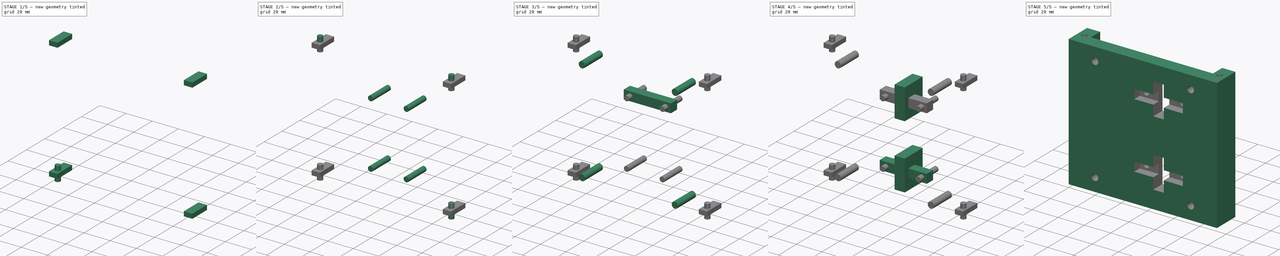
[diagram: build sequence overview — one tinted view per stage of 5, left to right]
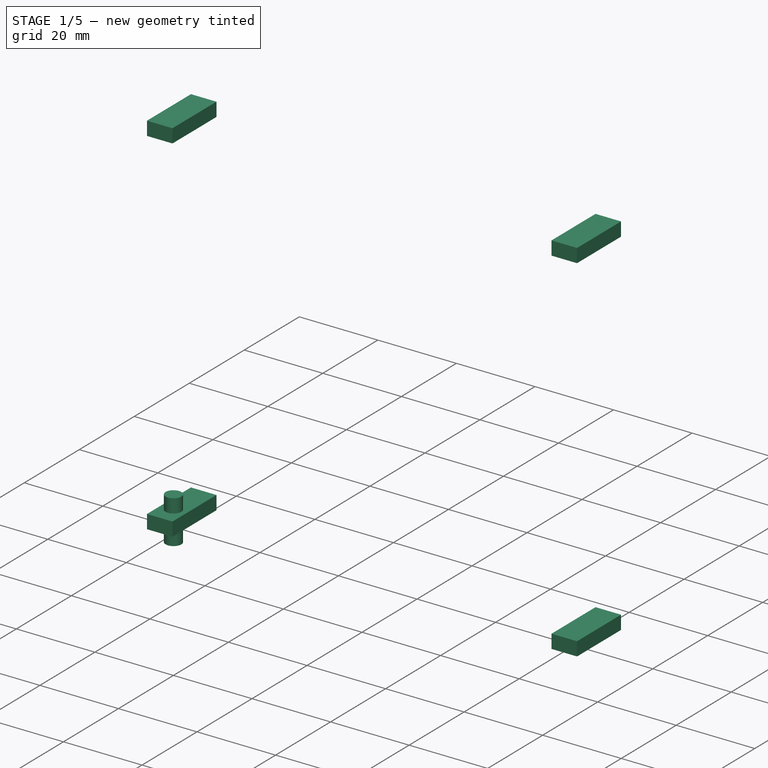
[diagram: stage 1 of 5 — iso view after this stage's code; geometry added in this stage tinted green]
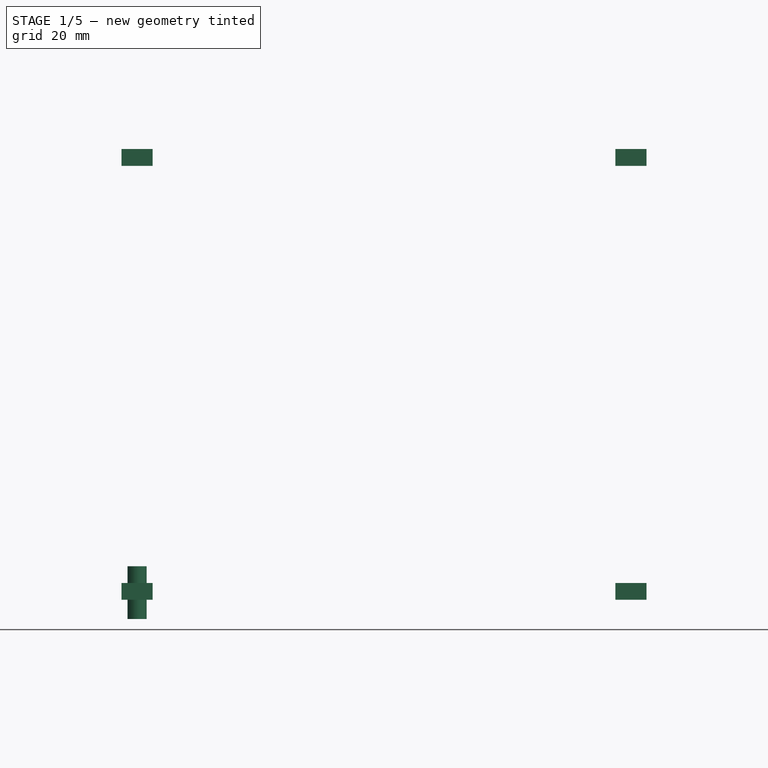
[diagram: stage 1 of 5 — front view after this stage's code; geometry added in this stage tinted green]
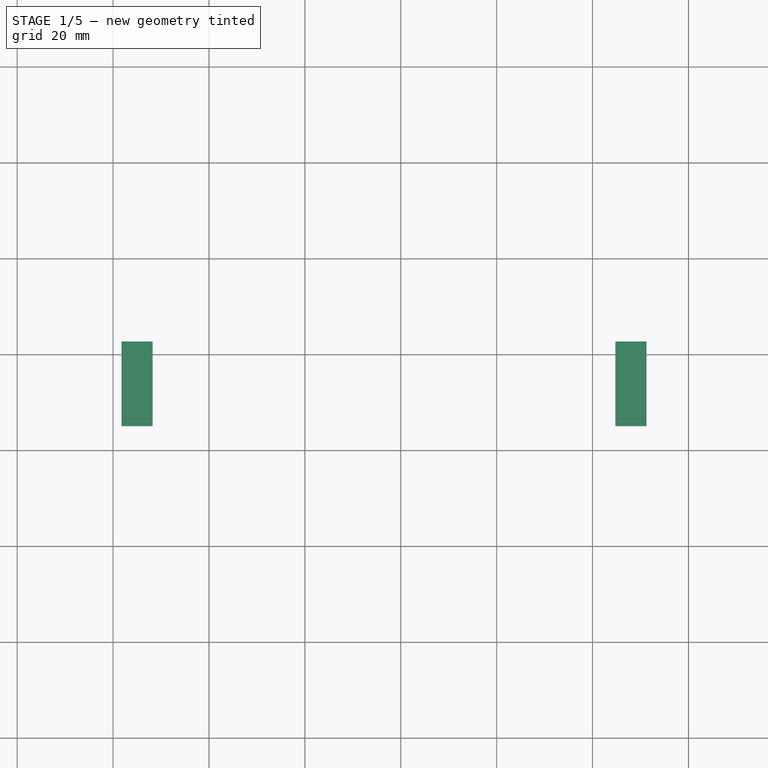
[diagram: stage 1 of 5 — top view after this stage's code; geometry added in this stage tinted green]
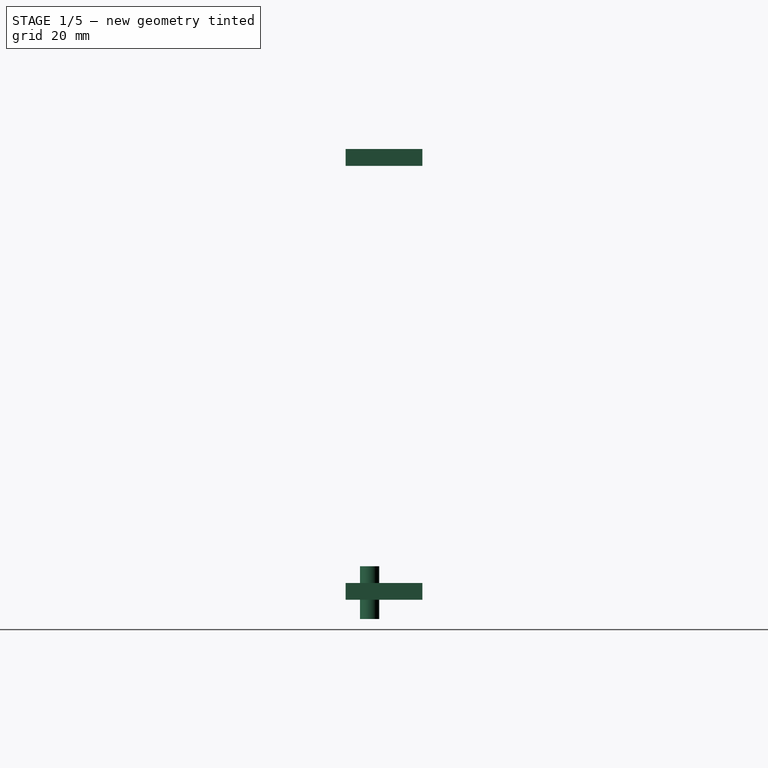
[diagram: stage 1 of 5 — right view after this stage's code; geometry added in this stage tinted green]
FCSTD DOCUMENT  (FreeCAD 0.14R3702 (Git))
Label: y_motor_holder_dn
License: CC-BY 3.0
LicenseURL: http://creativecommons.org/licenses/by/3.0/
objects: Part::Box×5, Part::FeaturePython×4, Part::Cylinder×3, Sketcher::SketchObject×1, Part::Extrusion×1, Part::MultiFuse×1, Part::Cut×1
note: 16 computed .brp shape members not serialized (recipe doc carries the construction recipe); baked Part::Feature solids carry a one-line shape summary decoded from their .brp

FEATURE [Part::Cylinder] Cylinder002  label="Cylinder"
  Angle = 360
  Height = 11
  Placement = pos=(5,10,-1) rot=(0,0,1;0rad)
  Radius = 2
FEATURE [Part::Box] Box004  label="h_nut_union"
  Height = 3.5
  Length = 6.5
  Placement = pos=(1.75,5,3) rot=(0,0,1;0rad)
  Width = 16
FEATURE [Part::FeaturePython] Array003  label="h_nut_union001"  # Draft array (typed FeaturePython)
  Angle = 360
  ArrayType = 0
  Axis = (0,0,1)
  Base = -> Box004
  Center = (0,0,0)
  IntervalX = (103,0,0)
  IntervalY = (0,1,0)
  IntervalZ = (0,0,90.5)
  NumberPolar = 1
  NumberX = 2
  NumberY = 1
  NumberZ = 2
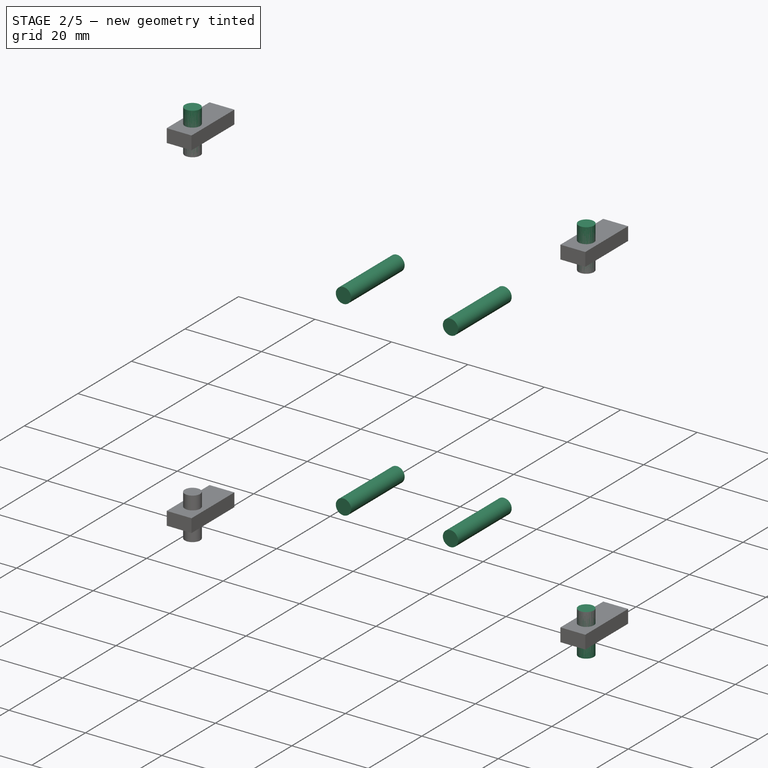
[diagram: stage 2 of 5 — iso view after this stage's code; geometry added in this stage tinted green]
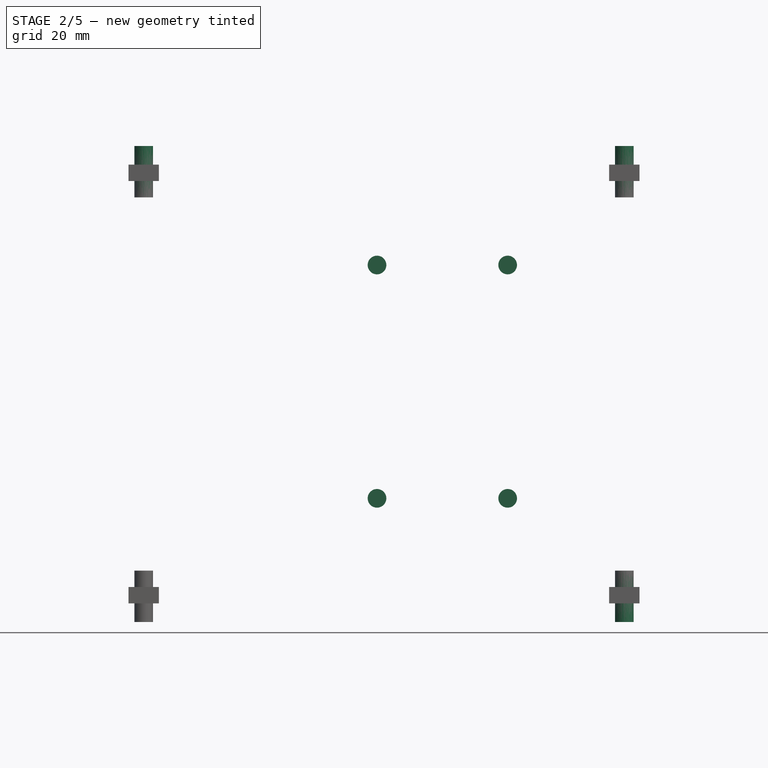
[diagram: stage 2 of 5 — front view after this stage's code; geometry added in this stage tinted green]
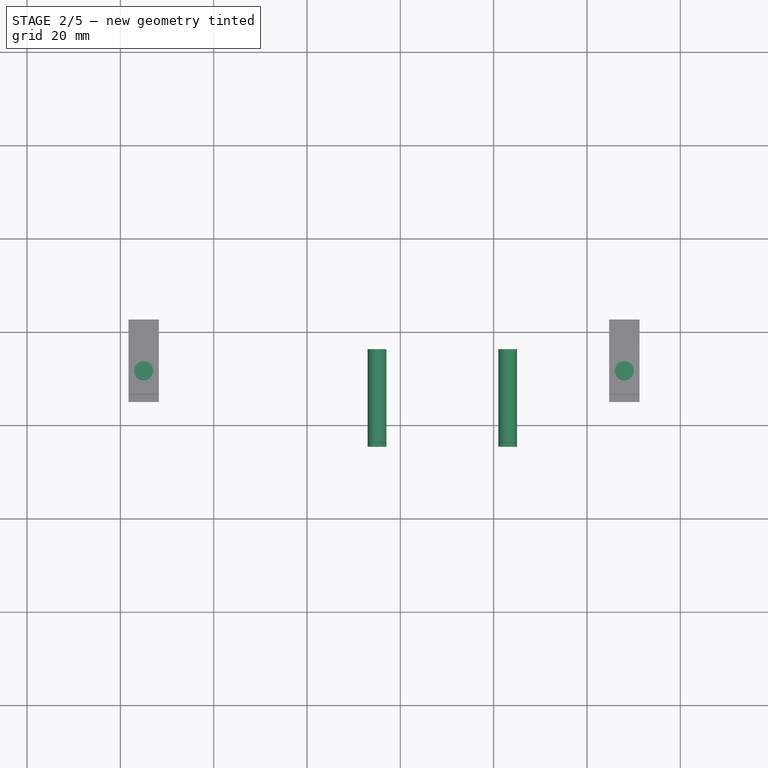
[diagram: stage 2 of 5 — top view after this stage's code; geometry added in this stage tinted green]
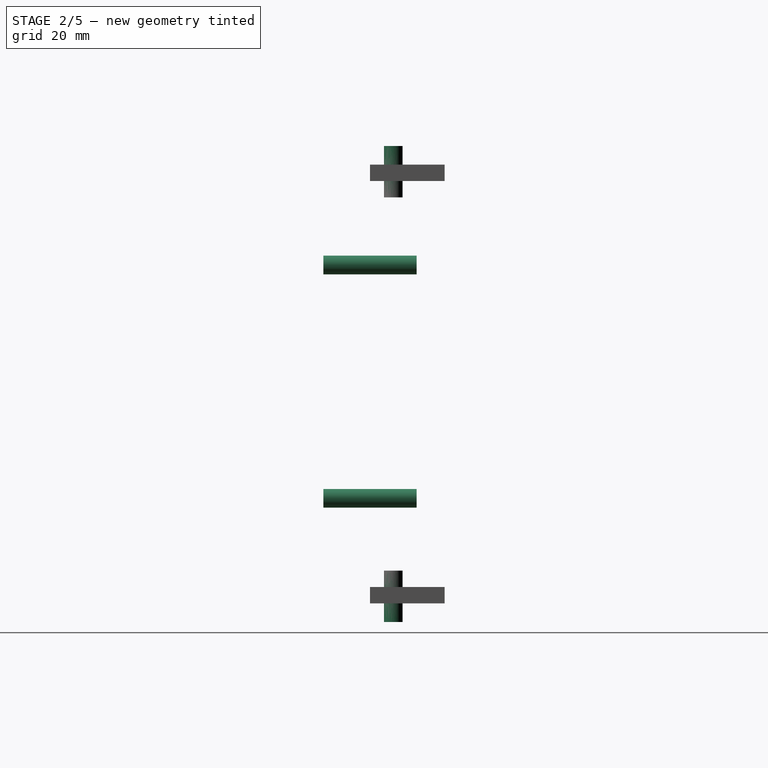
[diagram: stage 2 of 5 — right view after this stage's code; geometry added in this stage tinted green]
FEATURE [Part::Cylinder] Cylinder001  label="h_bearing_bolt_dn_l"
  Angle = 360
  Height = 20
  Placement = pos=(55,15,25.5) rot=(1,0,0;1.5708rad)
  Radius = 2
FEATURE [Part::FeaturePython] Array001  label="h_bearing_bolt"  # Draft array (typed FeaturePython)
  Angle = 360
  ArrayType = 0
  Axis = (0,0,1)
  Base = -> Cylinder001
  Center = (0,0,0)
  IntervalX = (28,0,0)
  IntervalY = (0,1,0)
  IntervalZ = (0,0,50)
  NumberPolar = 1
  NumberX = 2
  NumberY = 1
  NumberZ = 2
FEATURE [Part::FeaturePython] Array002  label="h_bolts_union"  # Draft array (typed FeaturePython)
  Angle = 360
  ArrayType = 0
  Axis = (0,0,1)
  Base = -> Cylinder002
  Center = (0,0,0)
  IntervalX = (103,0,0)
  IntervalY = (0,1,0)
  IntervalZ = (0,0,91)
  NumberPolar = 1
  NumberX = 2
  NumberY = 1
  NumberZ = 2
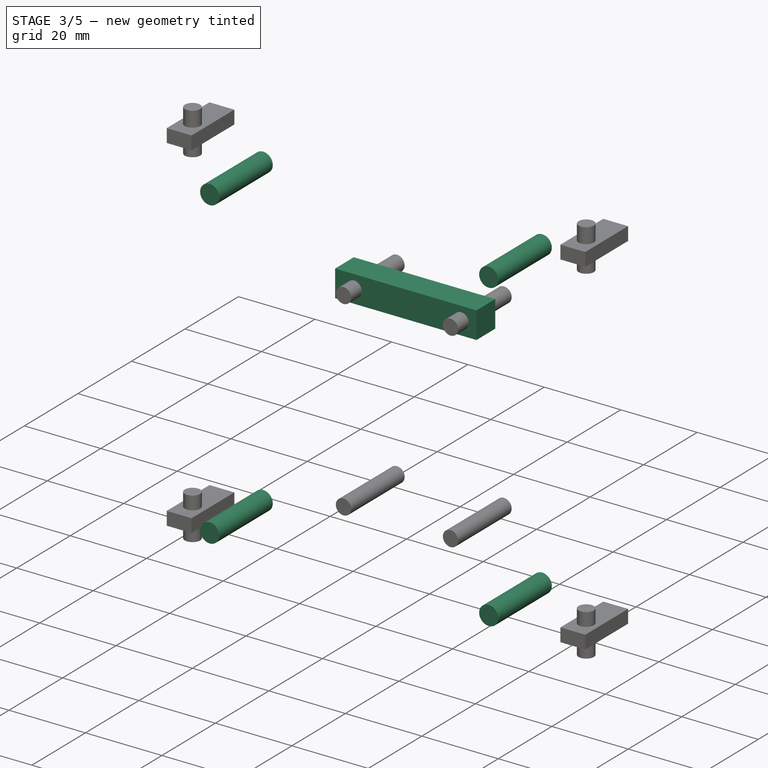
[diagram: stage 3 of 5 — iso view after this stage's code; geometry added in this stage tinted green]
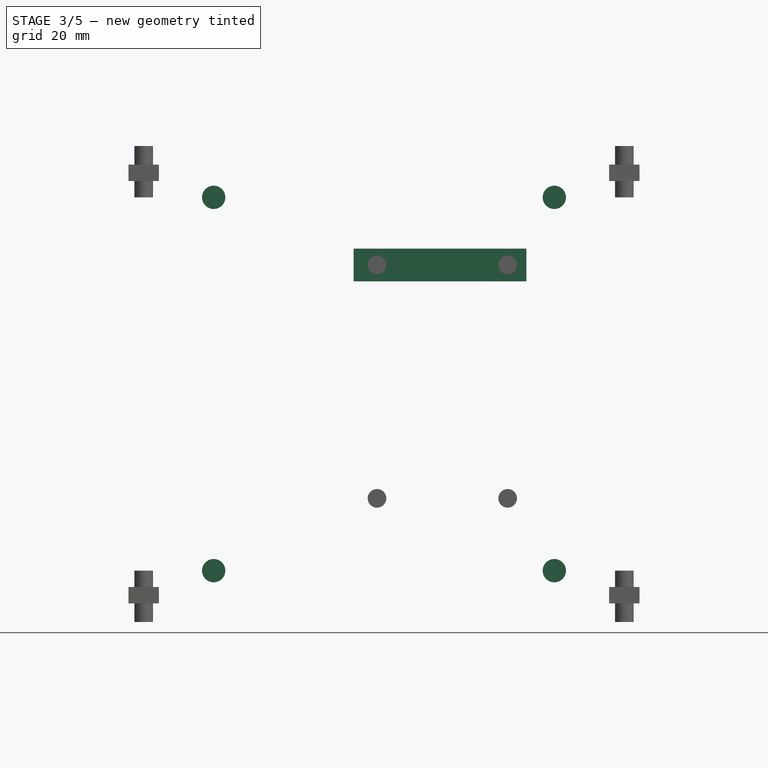
[diagram: stage 3 of 5 — front view after this stage's code; geometry added in this stage tinted green]
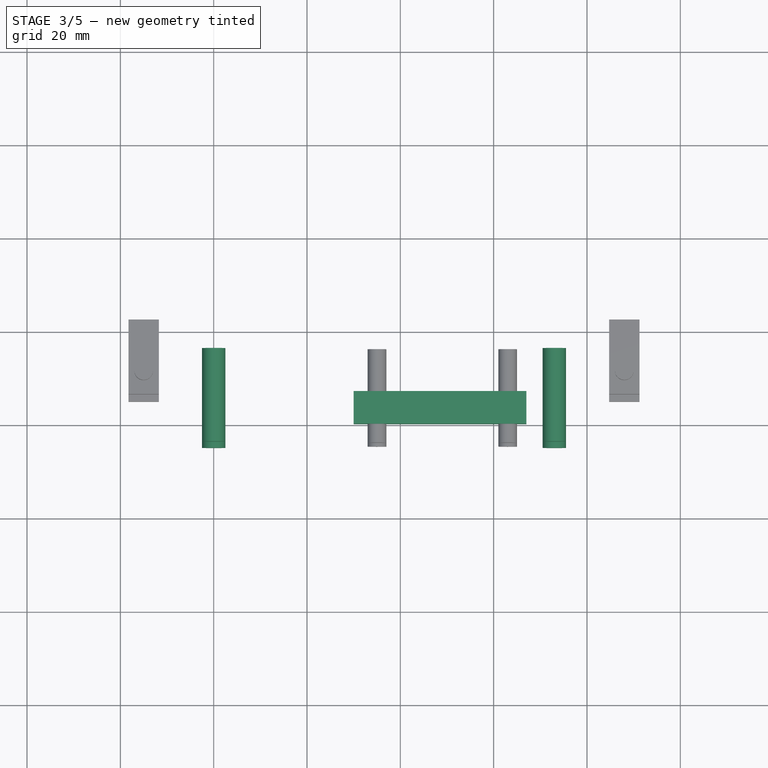
[diagram: stage 3 of 5 — top view after this stage's code; geometry added in this stage tinted green]
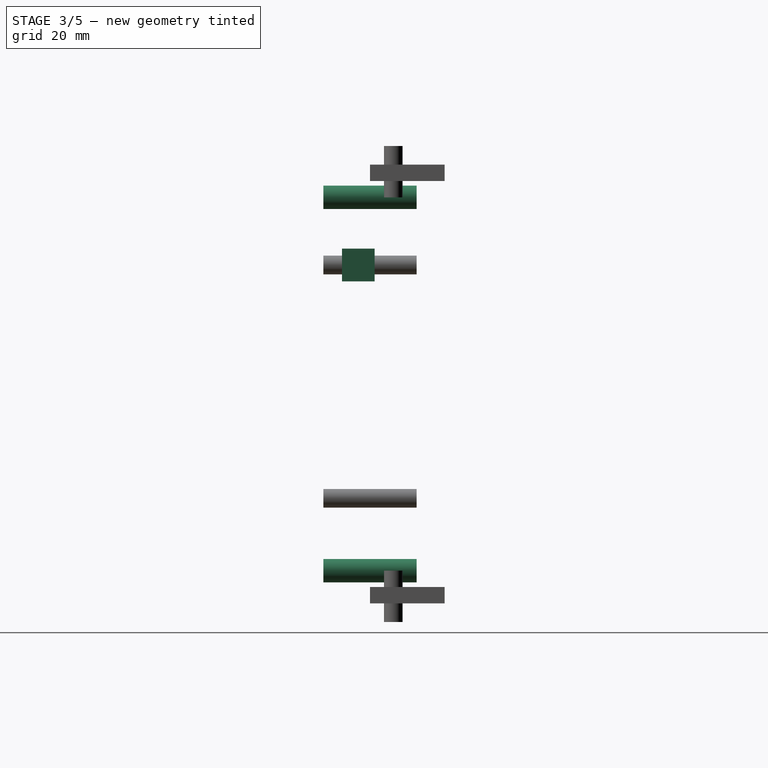
[diagram: stage 3 of 5 — right view after this stage's code; geometry added in this stage tinted green]
FEATURE [Part::Box] Box003  label="h_bearing_up_h"
  Height = 7
  Length = 37
  Placement = pos=(50,-1,72) rot=(0,0,1;0rad)
  Width = 7
FEATURE [Part::Cylinder] Cylinder  label="h_hole_extra"
  Angle = 360
  Height = 20
  Placement = pos=(20,15,10) rot=(1,0,0;1.5708rad)
  Radius = 2.5
FEATURE [Part::FeaturePython] Array  label="h_holes_extra_arr"  # Draft array (typed FeaturePython)
  Angle = 360
  ArrayType = 0
  Axis = (0,0,1)
  Base = -> Cylinder
  Center = (0,0,0)
  IntervalX = (73,0,0)
  IntervalY = (0,1,0)
  IntervalZ = (0,0,80)
  NumberPolar = 1
  NumberX = 2
  NumberY = 1
  NumberZ = 2
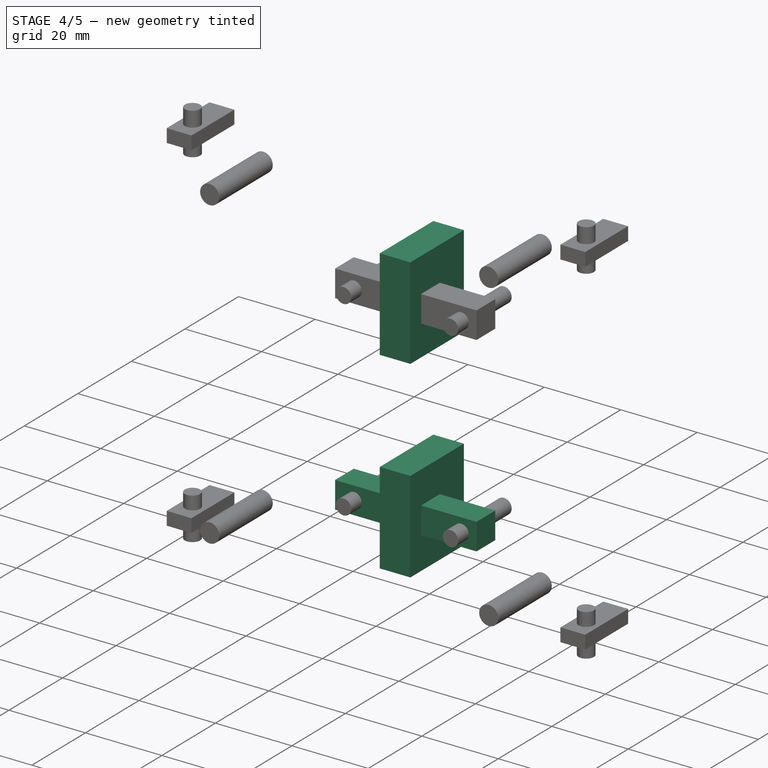
[diagram: stage 4 of 5 — iso view after this stage's code; geometry added in this stage tinted green]
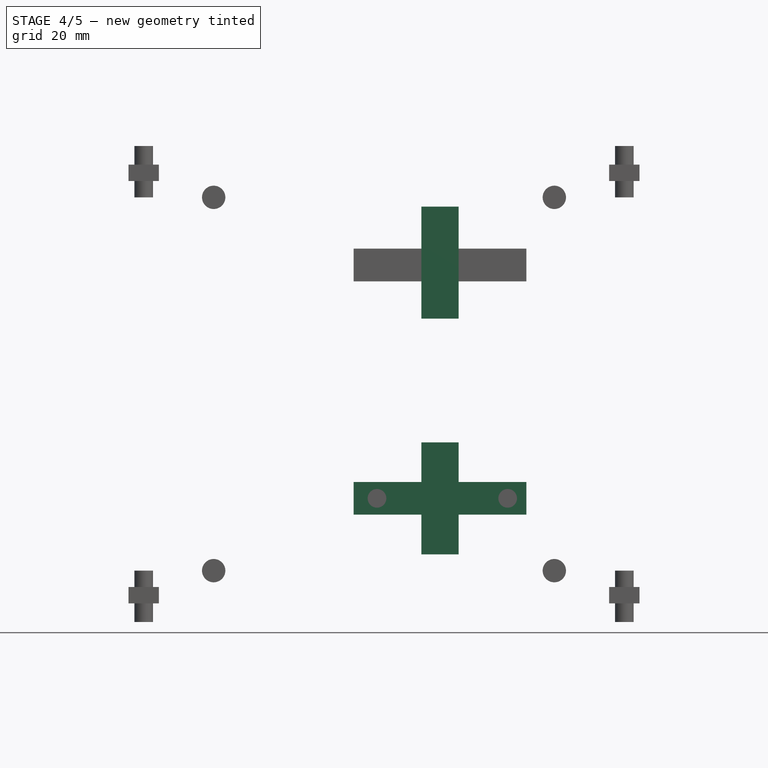
[diagram: stage 4 of 5 — front view after this stage's code; geometry added in this stage tinted green]
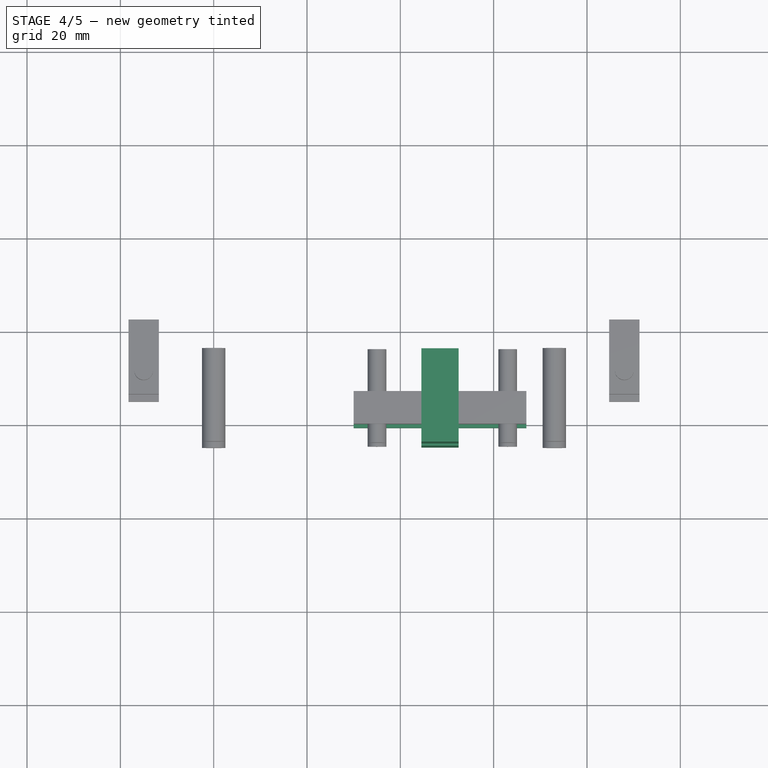
[diagram: stage 4 of 5 — top view after this stage's code; geometry added in this stage tinted green]
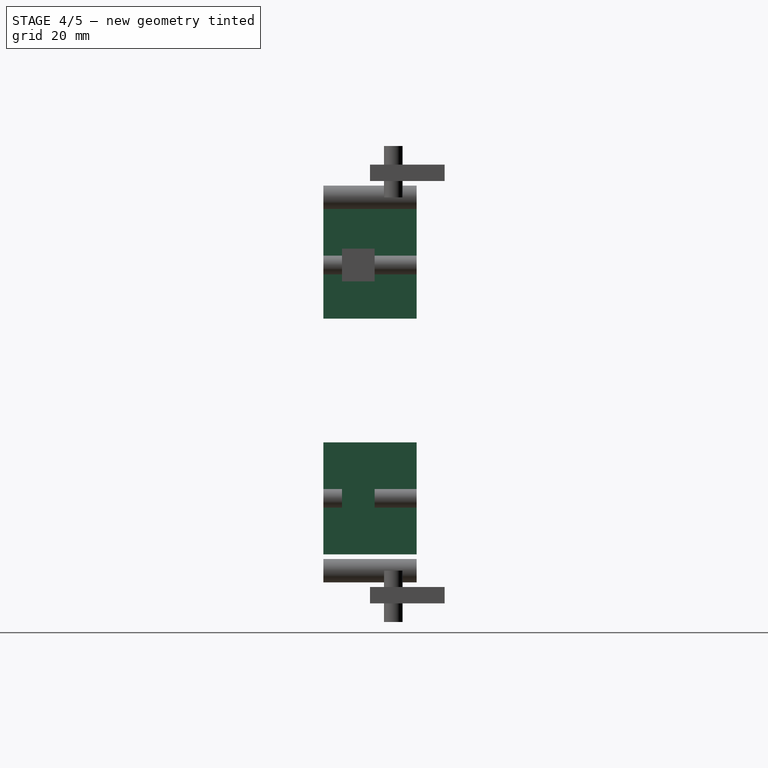
[diagram: stage 4 of 5 — right view after this stage's code; geometry added in this stage tinted green]
FEATURE [Part::Box] Box  label="h_bearing_up_v"
  Height = 24
  Length = 8
  Placement = pos=(64.5,-5,64) rot=(0,0,1;0rad)
  Width = 20
FEATURE [Part::Box] Box001  label="h_bearing_dn_v"
  Height = 24
  Length = 8
  Placement = pos=(64.5,-5,13.5) rot=(0,0,1;0rad)
  Width = 20
FEATURE [Part::Box] Box002  label="h_bearing_dn_h"
  Height = 7
  Length = 37
  Placement = pos=(50,-1,22) rot=(0,0,1;0rad)
  Width = 7
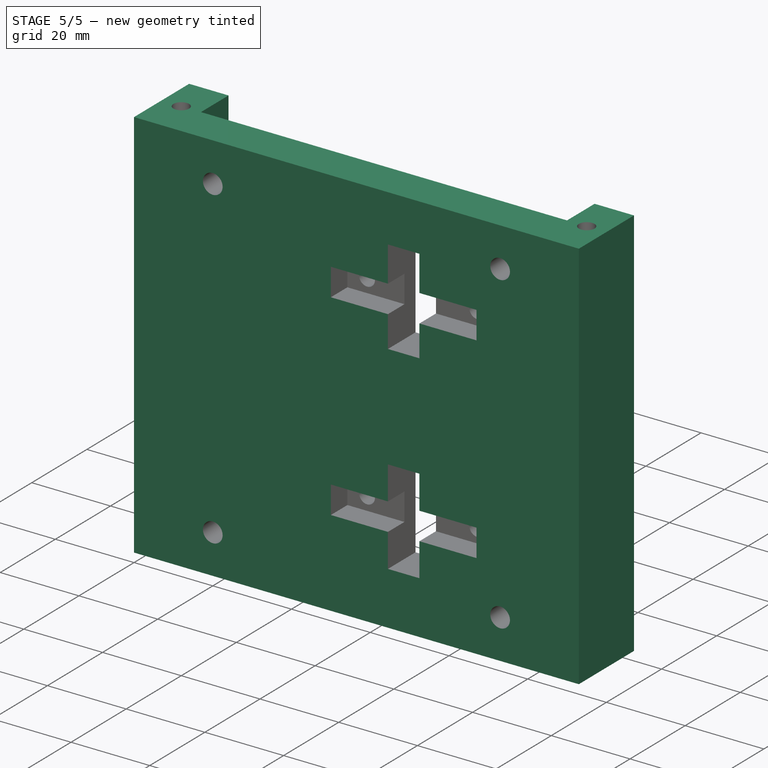
[diagram: stage 5 of 5 — iso view after this stage's code; geometry added in this stage tinted green]
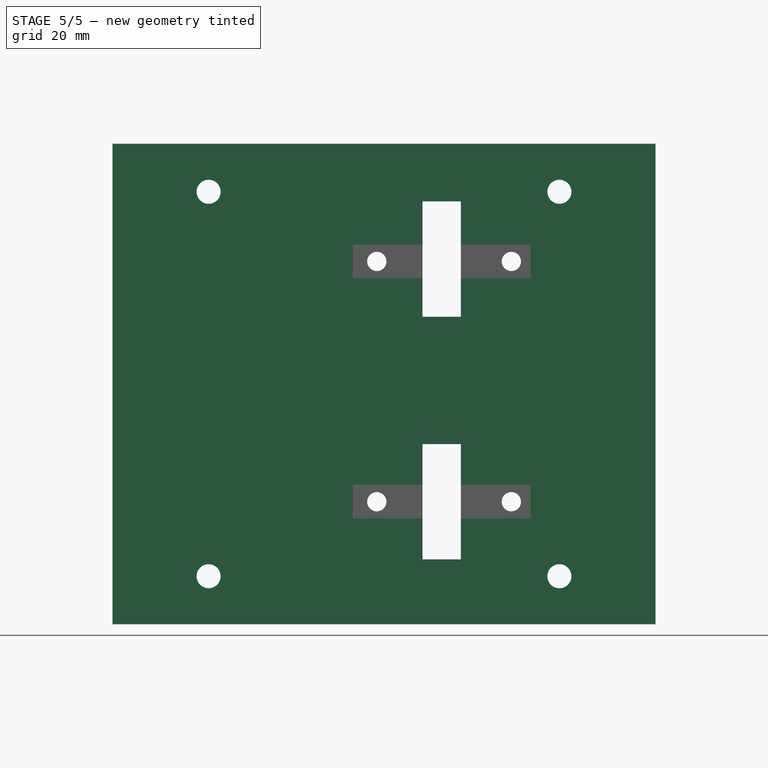
[diagram: stage 5 of 5 — front view after this stage's code; geometry added in this stage tinted green]
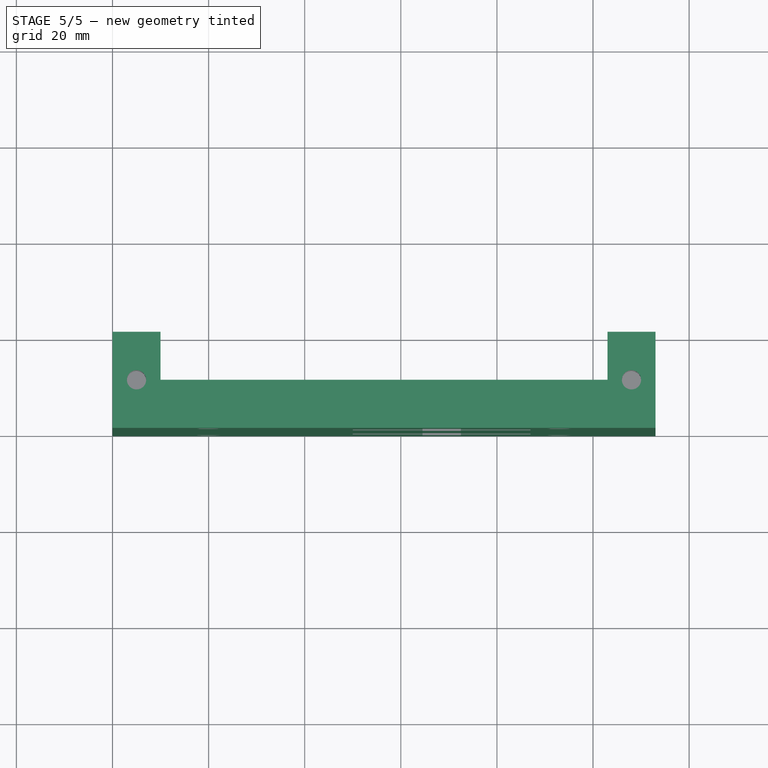
[diagram: stage 5 of 5 — top view after this stage's code; geometry added in this stage tinted green]
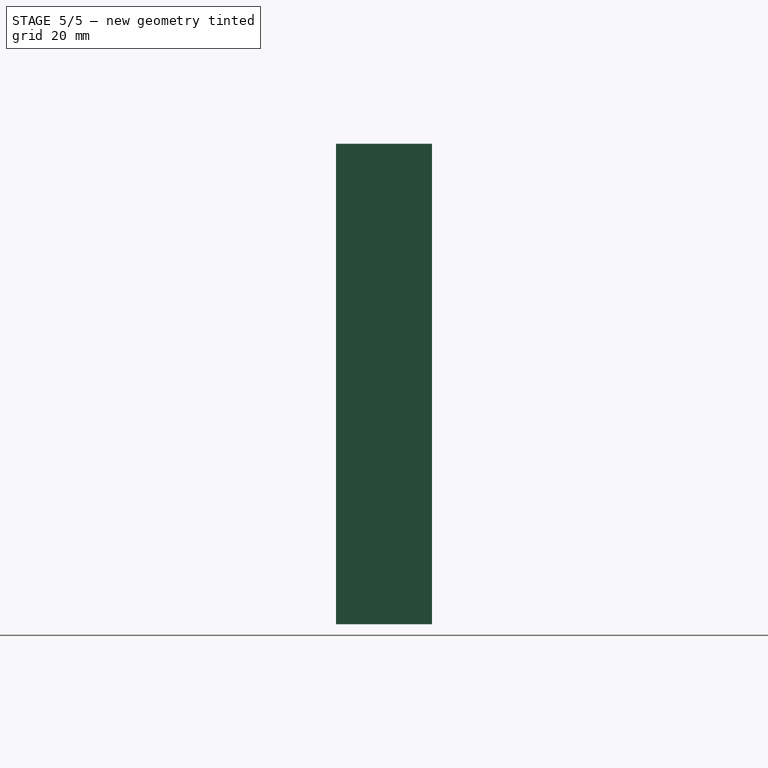
[diagram: stage 5 of 5 — right view after this stage's code; geometry added in this stage tinted green]
FEATURE [Sketcher::SketchObject] Sketch
  sketch-geometry (8):
    g0: LineSegment StartX=-56.5 StartY=20 StartZ=0 EndX=-46.5 EndY=20 EndZ=0
    g1: LineSegment StartX=-46.5 StartY=20 StartZ=0 EndX=-46.5 EndY=10 EndZ=0
    g2: LineSegment StartX=-46.5 StartY=10 StartZ=0 EndX=46.5 EndY=10 EndZ=0
    g3: LineSegment StartX=46.5 StartY=10 StartZ=0 EndX=46.5 EndY=20 EndZ=0
    g4: LineSegment StartX=46.5 StartY=20 StartZ=0 EndX=56.5 EndY=20 EndZ=0
    g5: LineSegment StartX=56.5 StartY=20 StartZ=0 EndX=56.5 EndY=0 EndZ=0
    g6: LineSegment StartX=56.5 StartY=0 StartZ=0 EndX=-56.5 EndY=0 EndZ=0
    g7: LineSegment StartX=-56.5 StartY=0 StartZ=0 EndX=-56.5 EndY=20 EndZ=0
  constraints (22):
    c: Horizontal(g0)
    c: Coincident(g0,g1)
    c: Vertical(g1)
    c: Coincident(g1,g2)
    c: Horizontal(g2)
    c: Coincident(g2,g3)
    c: Vertical(g3)
    c: Coincident(g3,g4)
    c: Coincident(g4,g5)
    c: Vertical(g5)
    c: Coincident(g5,g6)
    c: Horizontal(g6)
    c: Coincident(g6,g7)
    c: Coincident(g7,g0)
    c: Vertical(g7)
    c: Symmetric(g0,g3,g-2)
    c: Symmetric(g4,g0,g-2)
    c: DistanceX(g6) = -113
    c: DistanceX(g2) = 93
    c: DistanceY(g1) = -10
    c: DistanceY(g7) = 20
    c: PointOnObject(g6,g-1)
FEATURE [Part::Extrusion] Extrude001  label="s_base"
  Base = -> Sketch
  Dir = (0,0,100)
  Placement = pos=(56.5,0,0) rot=(0,0,1;0rad)
  Solid = true
FEATURE [Part::MultiFuse] Fusion  label="holes"
  Shapes = -> [Array003,Array002,Box,Box001,Box002,Box003,Array,Array001]
FEATURE [Part::Cut] Cut
  Base = -> Extrude001
  Tool = -> Fusion
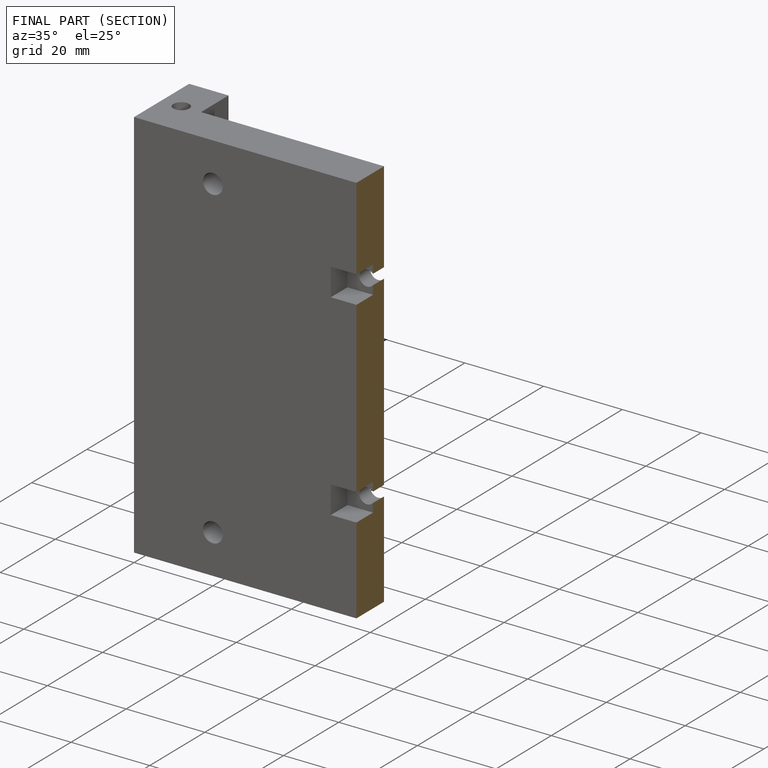
[diagram: finished part — half-section view (interior)]
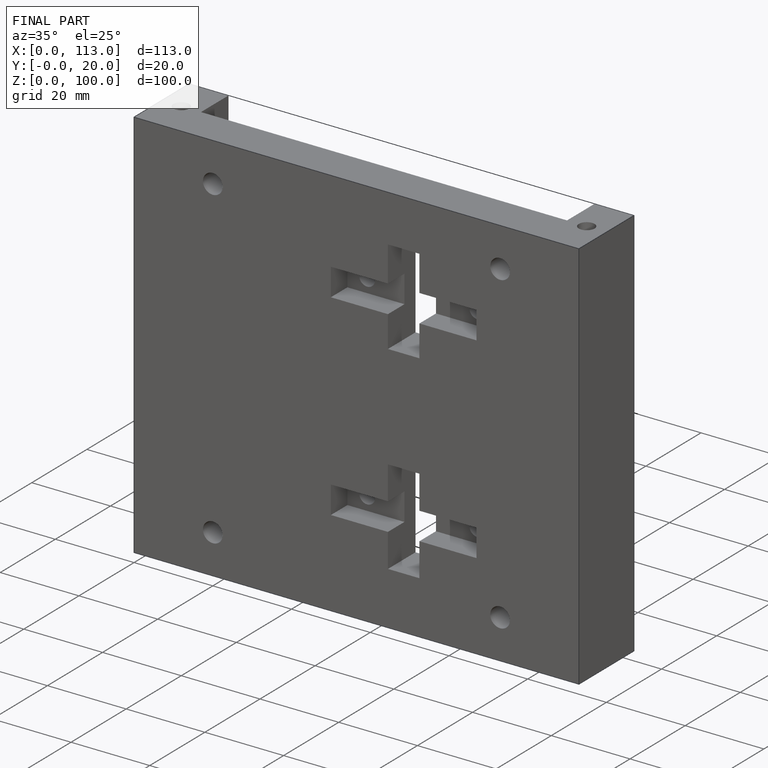
[diagram: finished part — iso view with bounding-box wireframe]
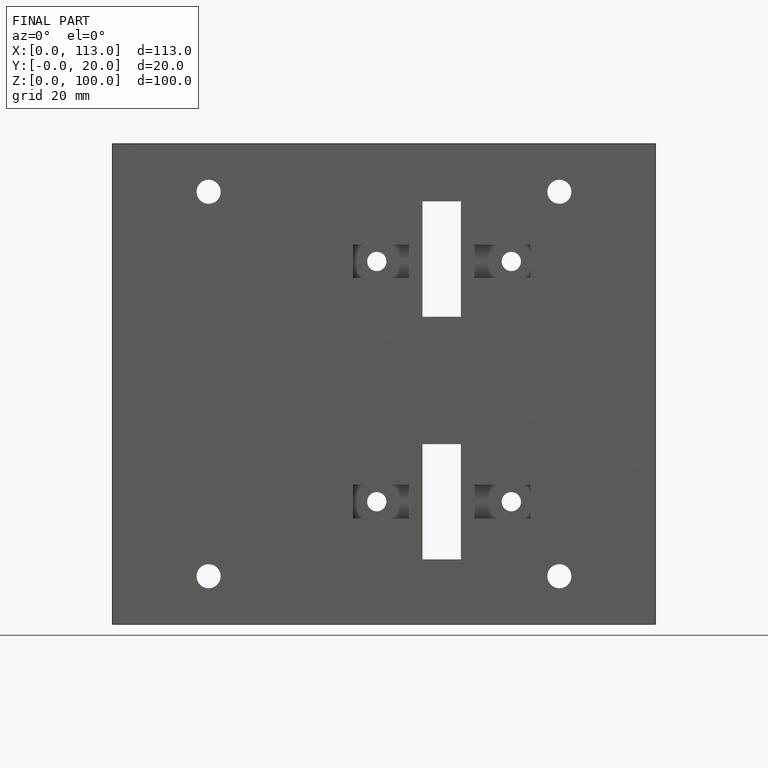
[diagram: finished part — front view with bounding-box wireframe]
